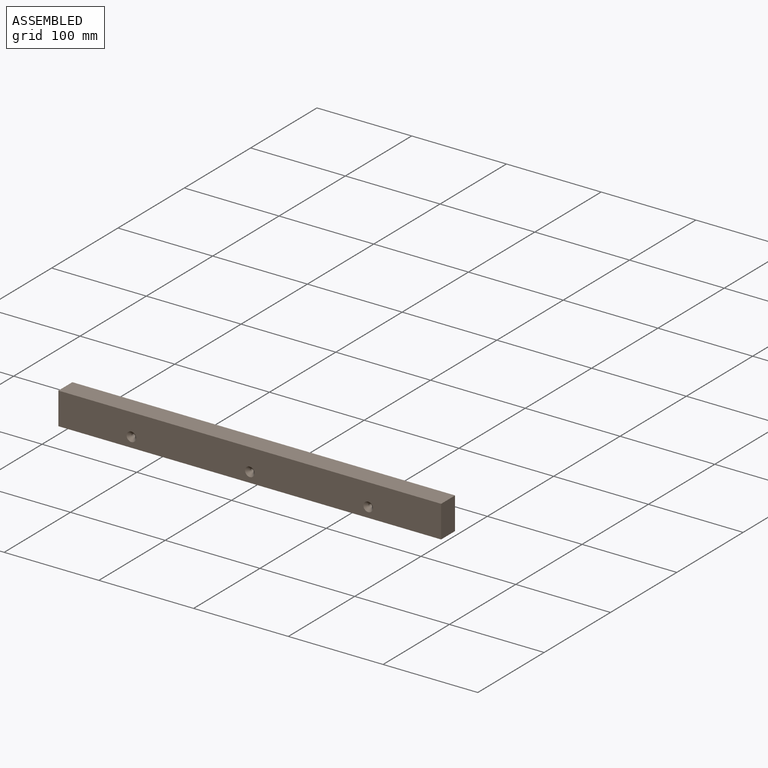
[diagram: assembled view]
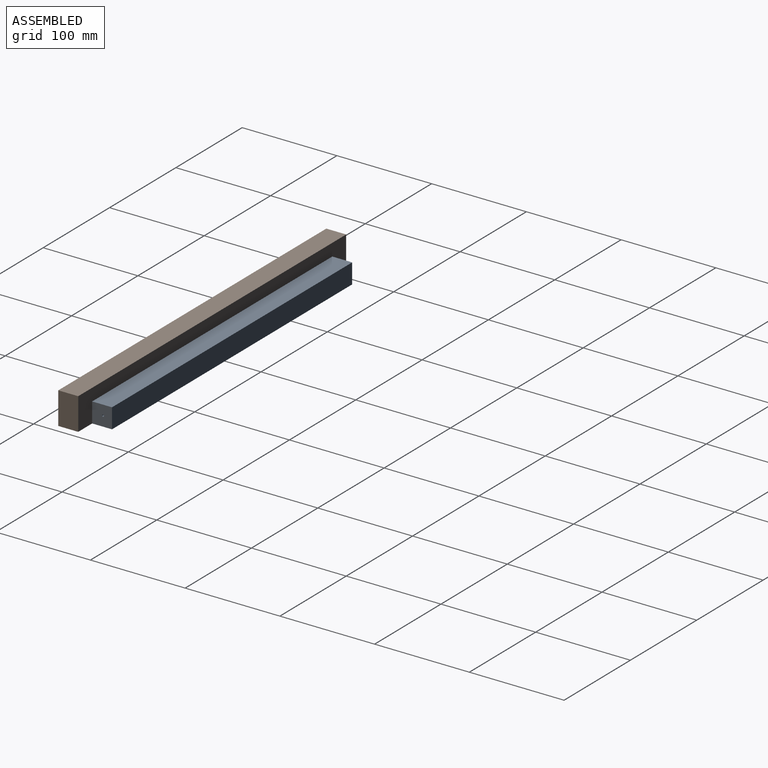
[diagram: assembled view, second angle]
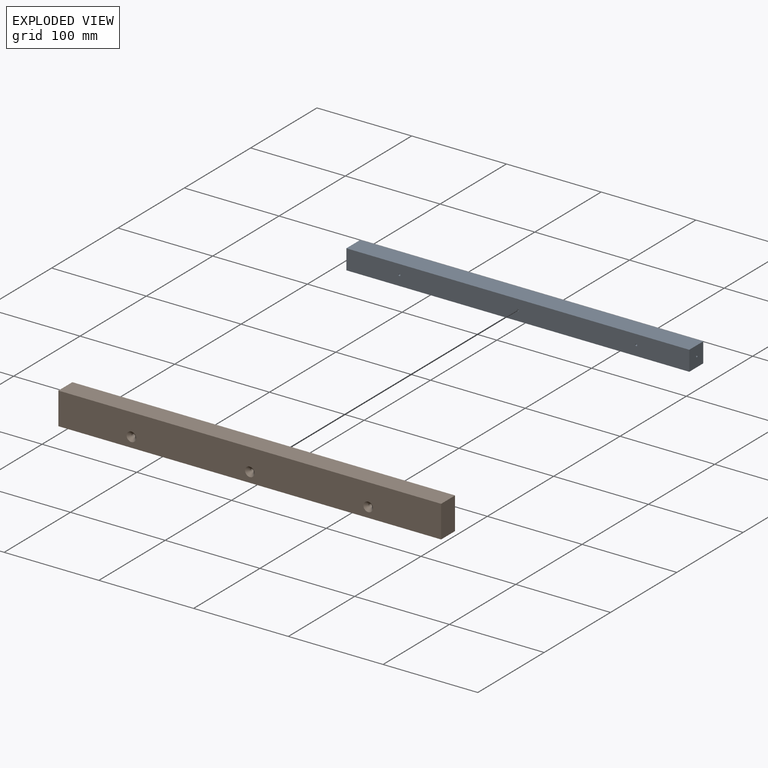
[diagram: exploded view]
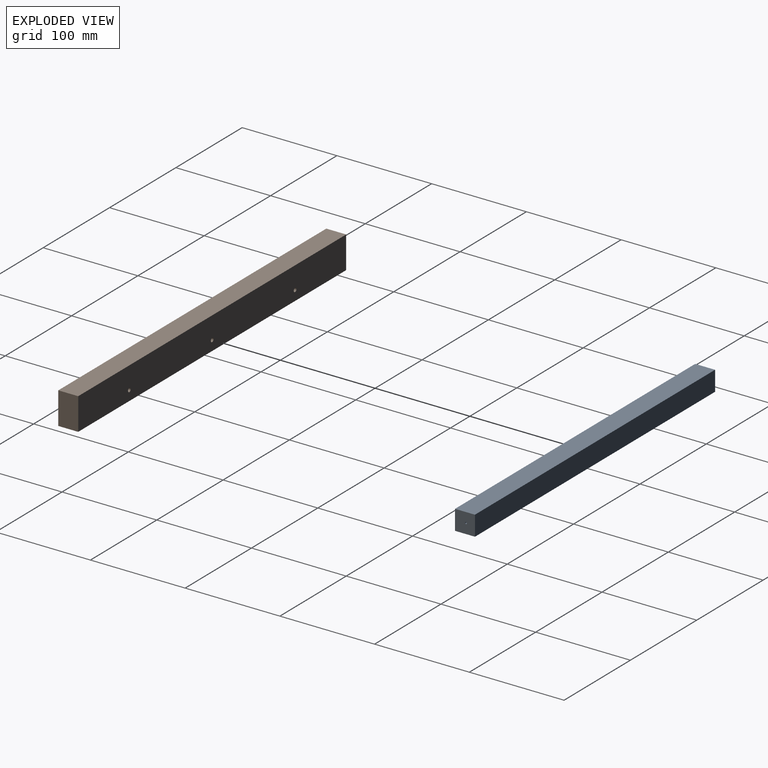
[diagram: exploded view, second angle]
ASSEMBLY  parts=2 mates=3
PART A: 16 faces, bbox 362x21x21 mm
  f0: plane 362x21mm, normal (0,0,1), area 7602mm2, adj f1,f3,f4,f11
  f1: plane 362x21mm, normal (0,-1,0), area 7592.6mm2, adj f0,f2,f4,f5,f7,f11,f12
  f2: plane 362x21mm, normal (0,0,-1), area 7602mm2, adj f1,f3,f4,f11
  f3: plane 362x21mm, normal (0,1,0), area 7602mm2, adj f0,f2,f4,f11
  f4: plane 21x21mm, normal (1,0,0), area 437.9mm2, adj f0,f1,f2,f3,f9
  f5: cylinder r=1mm len=19mm, axis (0,-1,0), area 119.4mm2, adj f1,f6
  f6: cone r=0mm half-angle=59deg, axis (0,-1,0), area 3.7mm2, adj f5
  f7: cylinder r=1mm len=19mm, axis (0,-1,0), area 119.4mm2, adj f1,f8
  f8: cone r=0mm half-angle=59deg, axis (0,-1,0), area 3.7mm2, adj f7
  f9: cylinder r=1mm len=29mm, axis (1,0,0), area 182.2mm2, adj f4,f10
  f10: cone r=0mm half-angle=59deg, axis (1,0,0), area 3.7mm2, adj f9
  f11: plane 21x21mm, normal (-1,0,0), area 437.9mm2, adj f0,f1,f2,f3,f14
  f12: cylinder r=1mm len=19mm, axis (0,-1,0), area 119.4mm2, adj f1,f13
  f13: cone r=0mm half-angle=59deg, axis (0,-1,0), area 3.7mm2, adj f12
  f14: cylinder r=1mm len=29mm, axis (-1,0,0), area 182.2mm2, adj f11,f15
  f15: cone r=0mm half-angle=59deg, axis (-1,0,0), area 3.7mm2, adj f14
PART B: 12 faces, bbox 404x21x34 mm
  f0: plane 404x34mm, normal (0,-1,0), area 13500.4mm2, adj f1,f3,f4,f5,f7,f9,f11
  f1: plane 404x21mm, normal (0,0,-1), area 8484mm2, adj f0,f2,f4,f5
  f2: plane 404x34mm, normal (0,1,0), area 13698.3mm2, adj f1,f3,f4,f5,f6,f8,f10
  f3: plane 404x21mm, normal (0,0,1), area 8484mm2, adj f0,f2,f4,f5
  f4: plane 34x21mm, normal (1,0,0), area 714mm2, adj f0,f1,f2,f3
  f5: plane 34x21mm, normal (-1,0,0), area 714mm2, adj f0,f1,f2,f3
  f6: cylinder r=2mm len=18mm, axis (0,-1,0), area 226.2mm2, adj f2,f7
  f7: cone r=2mm half-angle=45deg, axis (0,-1,0), area 93.3mm2, adj f0,f6
  f8: cylinder r=2mm len=18mm, axis (0,-1,0), area 226.2mm2, adj f2,f9
  f9: cone r=2mm half-angle=45deg, axis (0,-1,0), area 93.3mm2, adj f0,f8
  f10: cylinder r=2mm len=18mm, axis (0,-1,0), area 226.2mm2, adj f2,f11
  f11: cone r=2mm half-angle=45deg, axis (0,-1,0), area 93.3mm2, adj f0,f10
PLACE A at identity
PLACE B at identity fixed
MATE cylindrical B.f6 <-> A.f13  axis (0,1,0) through (-125,-151.5,10.5)mm
MATE planar B.f2 <-> A.f1  axis (0,1,0) through (0,-151.5,17.02)mm
MATE cylindrical B.f10 <-> A.f8  axis (0,1,0) through (125,-151.5,10.5)mm
